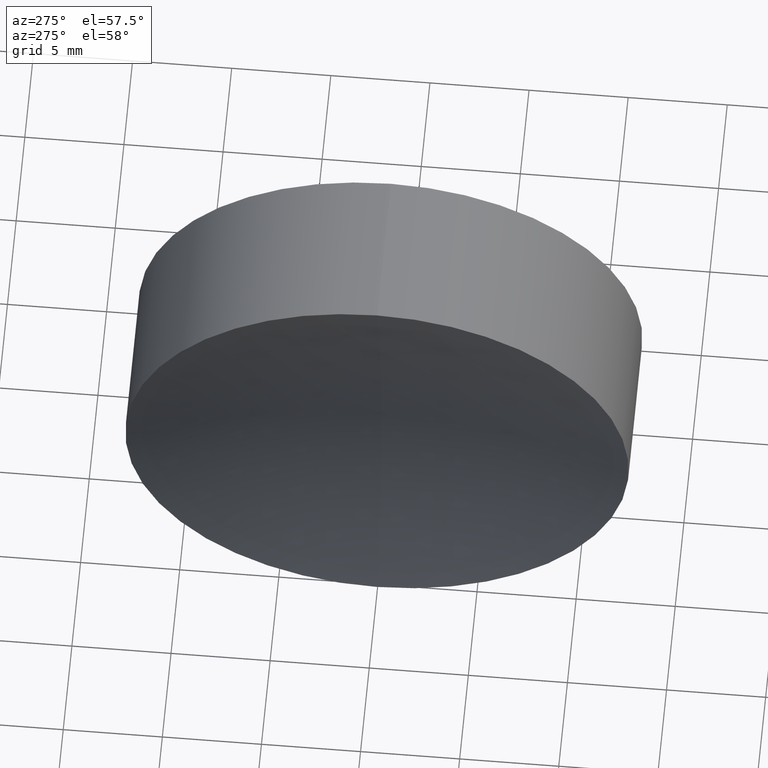
[diagram: clean part render]
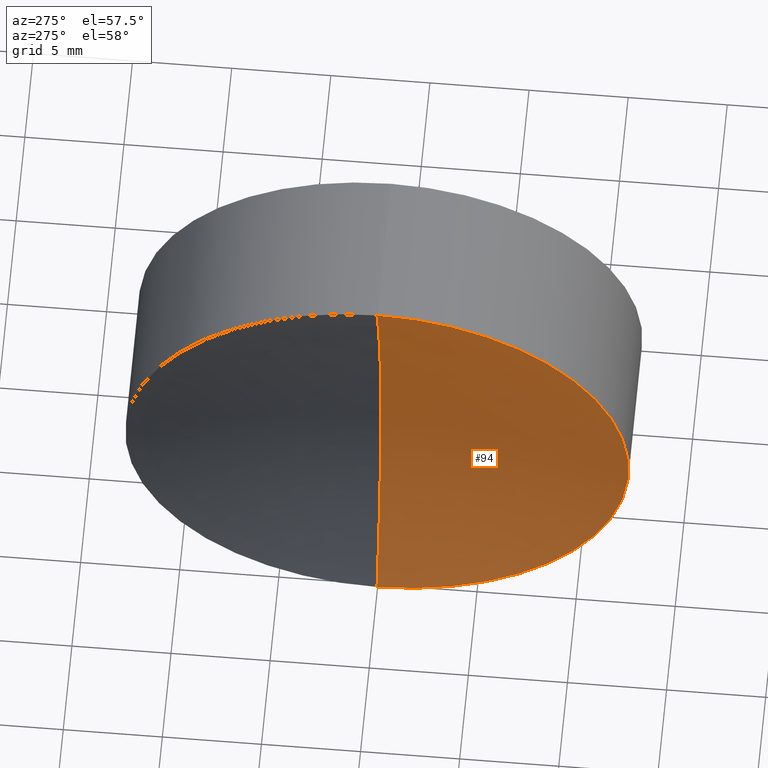
[diagram: same view with one face highlighted and labeled with its STEP entity id]
A machine part, auxiliary view. The second image highlights one B-rep face of the part: STEP entity #94.
In plain terms, the highlighted spherical surface has radius 37.14 mm.
Its self-contained STEP definition (entity closure, byte-faithful):
#1 = CARTESIAN_POINT ( 'NONE',  ( 144.4937671120052900, 1.555301434917136300E-015, -12.70000000000005300 ) ) ;
#7 = DIRECTION ( 'NONE',  ( 0.0000000000000000000, -1.000000000000000000, 0.0000000000000000000 ) ) ;
#22 = CARTESIAN_POINT ( 'NONE',  ( 146.7326267294905600, 0.0000000000000000000, -6.637079679227676800E-014 ) ) ;
#28 = EDGE_CURVE ( 'NONE', #239, #149, #162, .T. ) ;
#47 = EDGE_CURVE ( 'NONE', #239, #337, #286, .T. ) ;
#54 = CARTESIAN_POINT ( 'NONE',  ( 144.4937671120052900, 0.0000000000000000000, 12.69999999999993400 ) ) ;
#56 = CARTESIAN_POINT ( 'NONE',  ( 109.5926267294905600, 0.0000000000000000000, -6.053013924752370300E-014 ) ) ;
#67 = DIRECTION ( 'NONE',  ( -1.000000000000000000, -0.0000000000000000000, 2.184929092829751300E-016 ) ) ;
#91 = ORIENTED_EDGE ( 'NONE', *, *, #28, .F. ) ;
#94 = ADVANCED_FACE ( 'NONE', ( #268 ), #216, .F. ) ;
#105 = EDGE_LOOP ( 'NONE', ( #91, #186, #193 ) ) ;
#106 = DIRECTION ( 'NONE',  ( 3.736614918636095100E-016, 0.0000000000000000000, 1.000000000000000000 ) ) ;
#128 = AXIS2_PLACEMENT_3D ( 'NONE', #56, #225, #271 ) ;
#137 = DIRECTION ( 'NONE',  ( -0.0000000000000000000, 1.000000000000000000, 0.0000000000000000000 ) ) ;
#138 = CARTESIAN_POINT ( 'NONE',  ( 144.4937671120052900, 0.0000000000000000000, -5.153169634145900400E-014 ) ) ;
#149 = VERTEX_POINT ( 'NONE', #54 ) ;
#162 = CIRCLE ( 'NONE', #341, 37.14000000000000100 ) ;
#167 = DIRECTION ( 'NONE',  ( 0.0000000000000000000, 0.0000000000000000000, -1.000000000000000000 ) ) ;
#186 = ORIENTED_EDGE ( 'NONE', *, *, #47, .T. ) ;
#192 = CARTESIAN_POINT ( 'NONE',  ( 109.5926267294905600, 0.0000000000000000000, -6.053013924752370300E-014 ) ) ;
#193 = ORIENTED_EDGE ( 'NONE', *, *, #281, .T. ) ;
#207 = AXIS2_PLACEMENT_3D ( 'NONE', #138, #67, #253 ) ;
#216 = SPHERICAL_SURFACE ( 'NONE', #227, 37.14000000000000100 ) ;
#225 = DIRECTION ( 'NONE',  ( 2.675766419897885000E-032, 1.000000000000000000, 1.224646799147353200E-016 ) ) ;
#227 = AXIS2_PLACEMENT_3D ( 'NONE', #285, #137, #106 ) ;
#239 = VERTEX_POINT ( 'NONE', #22 ) ;
#251 = CIRCLE ( 'NONE', #207, 12.69999999999999000 ) ;
#253 = DIRECTION ( 'NONE',  ( 0.0000000000000000000, 0.0000000000000000000, 1.000000000000000000 ) ) ;
#268 = FACE_OUTER_BOUND ( 'NONE', #105, .T. ) ;
#271 = DIRECTION ( 'NONE',  ( 0.0000000000000000000, -1.224646799147353200E-016, 1.000000000000000000 ) ) ;
#281 = EDGE_CURVE ( 'NONE', #337, #149, #251, .T. ) ;
#285 = CARTESIAN_POINT ( 'NONE',  ( 109.5926267294905600, 0.0000000000000000000, -6.053013924752370300E-014 ) ) ;
#286 = CIRCLE ( 'NONE', #128, 37.14000000000000100 ) ;
#337 = VERTEX_POINT ( 'NONE', #1 ) ;
#341 = AXIS2_PLACEMENT_3D ( 'NONE', #192, #7, #167 ) ;